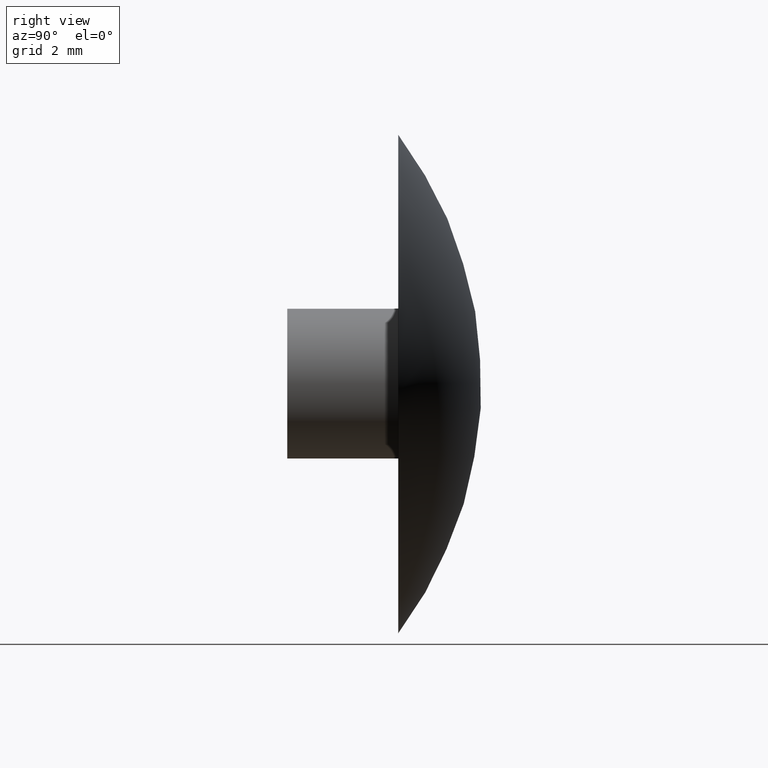
[diagram: clean part render]
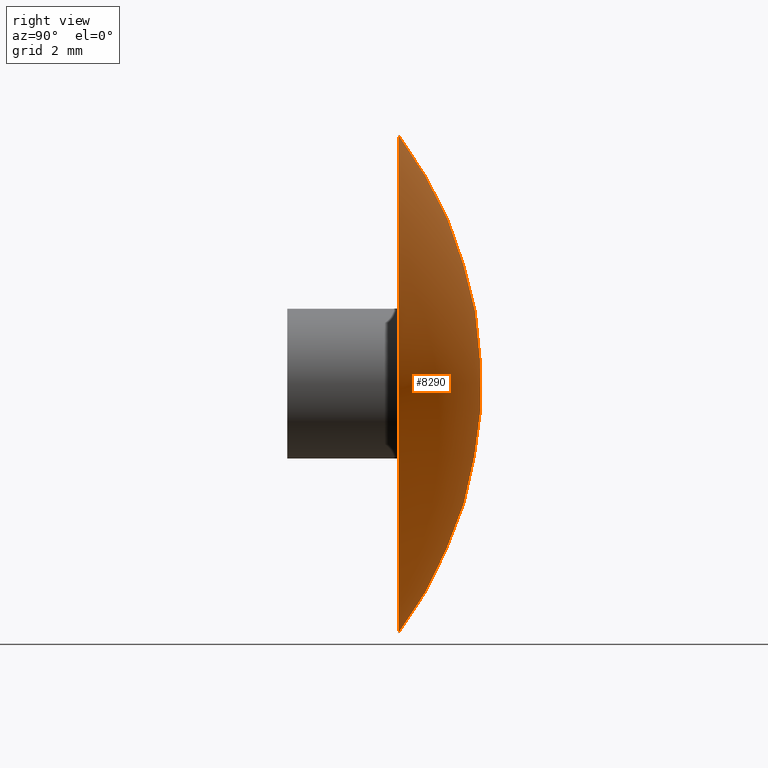
[diagram: same view with one face highlighted and labeled with its STEP entity id]
A machine part, right view. The second image highlights one B-rep face of the part: STEP entity #8290.
In plain terms, the highlighted spherical surface has radius 7.5 mm.
Its self-contained STEP definition (entity closure, byte-faithful):
#233 = ORIENTED_EDGE ( 'NONE', *, *, #7000, .F. ) ;
#272 = CARTESIAN_POINT ( 'NONE',  ( 0.000000000000000000, 1.999999999999999112, -4.500000000000000000 ) ) ;
#609 = DIRECTION ( 'NONE',  ( -0.000000000000000000, -1.000000000000000000, -0.000000000000000000 ) ) ;
#759 = FACE_OUTER_BOUND ( 'NONE', #932, .T. ) ;
#765 = AXIS2_PLACEMENT_3D ( 'NONE', #5544, #8267, #2628 ) ;
#932 = EDGE_LOOP ( 'NONE', ( #233 ) ) ;
#2485 = CARTESIAN_POINT ( 'NONE',  ( 0.000000000000000000, 1.999999999999999112, 0.000000000000000000 ) ) ;
#2628 = DIRECTION ( 'NONE',  ( 1.000000000000000000, 0.000000000000000000, 0.000000000000000000 ) ) ;
#3719 = AXIS2_PLACEMENT_3D ( 'NONE', #2485, #609, #8243 ) ;
#5544 = CARTESIAN_POINT ( 'NONE',  ( 1.972152263052529514E-28, -3.999999999999996447, 0.000000000000000000 ) ) ;
#6077 = CIRCLE ( 'NONE', #3719, 4.500000000000000000 ) ;
#7000 = EDGE_CURVE ( 'NONE', #8747, #8747, #6077, .T. ) ;
#7167 = SPHERICAL_SURFACE ( 'NONE', #765, 7.499999999999996447 ) ;
#8243 = DIRECTION ( 'NONE',  ( 0.000000000000000000, 0.000000000000000000, -1.000000000000000000 ) ) ;
#8267 = DIRECTION ( 'NONE',  ( 0.000000000000000000, 0.000000000000000000, 1.000000000000000000 ) ) ;
#8290 = ADVANCED_FACE ( 'NONE', ( #759 ), #7167, .T. ) ;
#8747 = VERTEX_POINT ( 'NONE', #272 ) ;